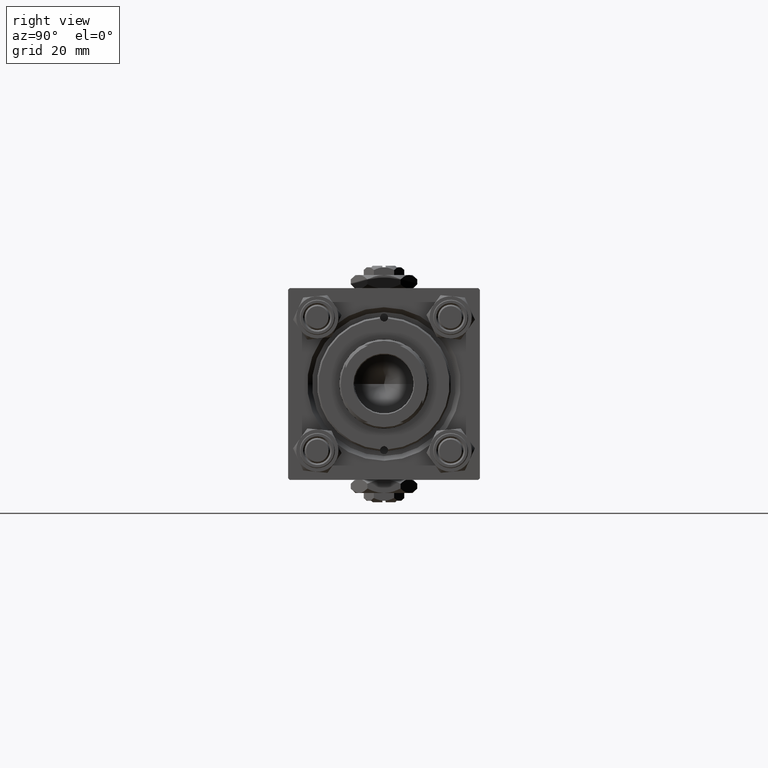
[diagram: clean part render]
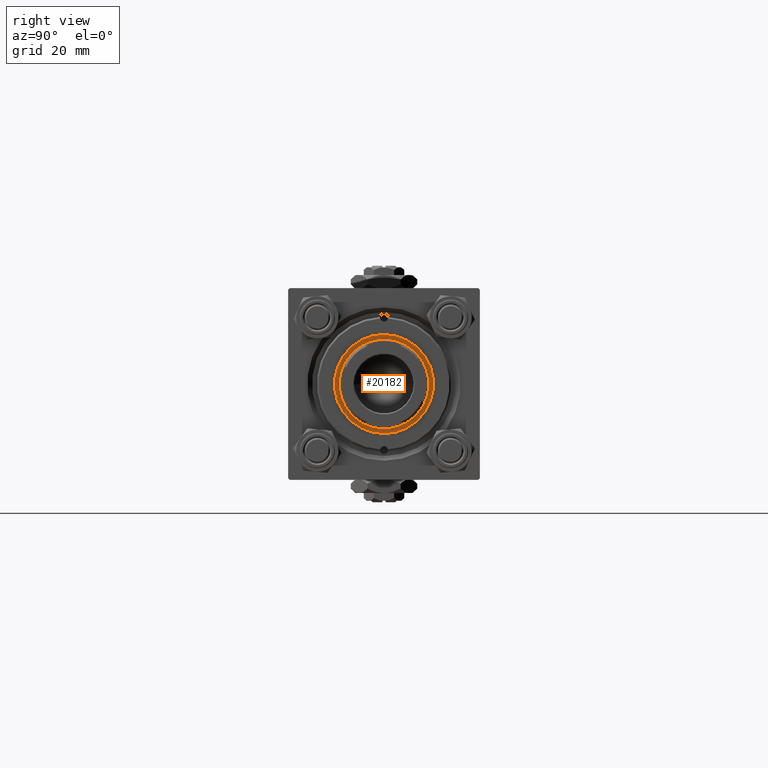
[diagram: same view with one face highlighted and labeled with its STEP entity id]
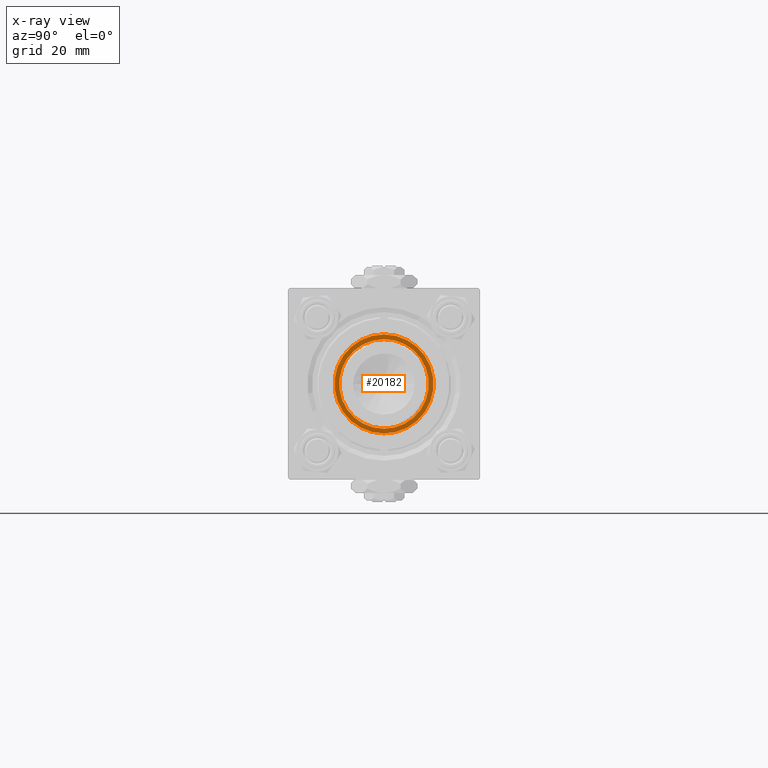
[diagram: x-ray of the same camera — body ghosted, the highlighted face saturated]
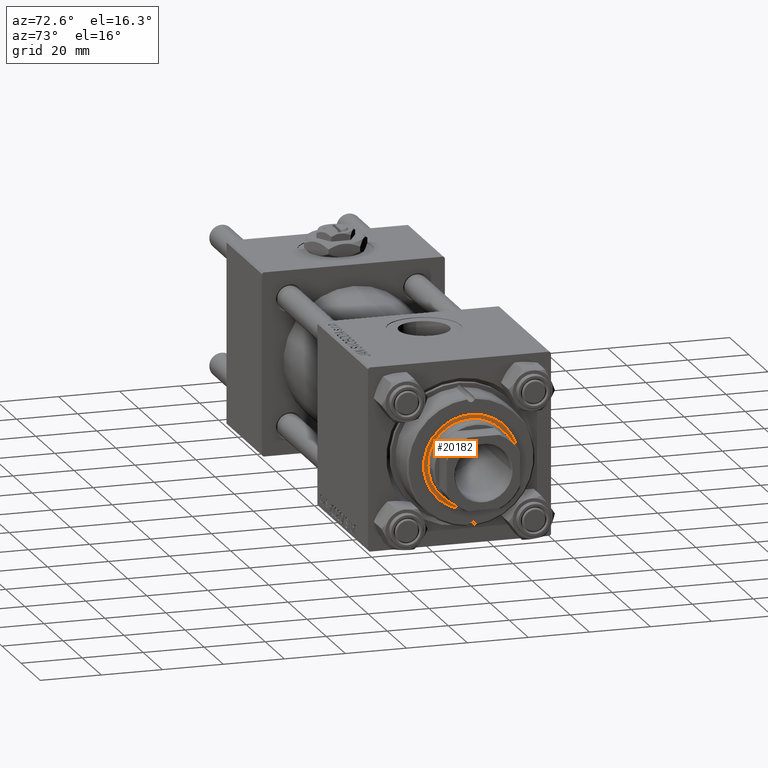
[diagram: same view with one face highlighted and labeled with its STEP entity id]
A machine part, right view. The second image highlights one B-rep face of the part: STEP entity #20182.
The next image is the same camera in x-ray: the body ghosted, the highlighted face saturated — about 0% of this face is hidden behind the body in this view.
A second angle (auxiliary view) of the same face is appended — the face is thin or edge-on in the first view.
In plain terms, the highlighted planar face has unit normal (1, 0, -0).
Its self-contained STEP definition (entity closure, byte-faithful):
#52 = CARTESIAN_POINT ( 'NONE',  ( 15.50000000000000000, 0.000000000000000000, 40.20000000000000284 ) ) ;
#591 = DIRECTION ( 'NONE',  ( -0.000000000000000000, -0.000000000000000000, -1.000000000000000000 ) ) ;
#847 = EDGE_CURVE ( 'NONE', #35475, #30435, #19662, .T. ) ;
#2757 = EDGE_LOOP ( 'NONE', ( #4251, #43251 ) ) ;
#3105 = FACE_OUTER_BOUND ( 'NONE', #2757, .T. ) ;
#4251 = ORIENTED_EDGE ( 'NONE', *, *, #9672, .T. ) ;
#5069 = CARTESIAN_POINT ( 'NONE',  ( 0.000000000000000000, 0.000000000000000000, 40.20000000000000284 ) ) ;
#7122 = CARTESIAN_POINT ( 'NONE',  ( 0.000000000000000000, 0.000000000000000000, 40.20000000000000284 ) ) ;
#8932 = CIRCLE ( 'NONE', #43461, 15.50000000000000000 ) ;
#9672 = EDGE_CURVE ( 'NONE', #18251, #32318, #43405, .T. ) ;
#10272 = DIRECTION ( 'NONE',  ( 1.000000000000000000, 0.000000000000000000, 0.000000000000000000 ) ) ;
#11235 = AXIS2_PLACEMENT_3D ( 'NONE', #7122, #23737, #11870 ) ;
#11870 = DIRECTION ( 'NONE',  ( 1.000000000000000000, 0.000000000000000000, 0.000000000000000000 ) ) ;
#13000 = DIRECTION ( 'NONE',  ( 0.000000000000000000, 0.000000000000000000, 1.000000000000000000 ) ) ;
#16345 = CIRCLE ( 'NONE', #44107, 14.00000000000000178 ) ;
#17206 = CARTESIAN_POINT ( 'NONE',  ( 0.000000000000000000, 0.000000000000000000, 40.20000000000000284 ) ) ;
#18251 = VERTEX_POINT ( 'NONE', #52 ) ;
#18420 = FACE_BOUND ( 'NONE', #25621, .T. ) ;
#19662 = CIRCLE ( 'NONE', #11235, 14.00000000000000178 ) ;
#20182 = ADVANCED_FACE ( 'NONE', ( #3105, #18420 ), #50581, .T. ) ;
#21006 = CARTESIAN_POINT ( 'NONE',  ( 0.000000000000000000, 0.000000000000000000, 40.20000000000000284 ) ) ;
#21561 = ORIENTED_EDGE ( 'NONE', *, *, #31410, .T. ) ;
#22650 = CARTESIAN_POINT ( 'NONE',  ( 0.000000000000000000, 0.000000000000000000, 40.20000000000000284 ) ) ;
#23737 = DIRECTION ( 'NONE',  ( -0.000000000000000000, -0.000000000000000000, -1.000000000000000000 ) ) ;
#25119 = DIRECTION ( 'NONE',  ( 1.000000000000000000, 0.000000000000000000, 0.000000000000000000 ) ) ;
#25621 = EDGE_LOOP ( 'NONE', ( #21561, #42838 ) ) ;
#30435 = VERTEX_POINT ( 'NONE', #47810 ) ;
#31410 = EDGE_CURVE ( 'NONE', #30435, #35475, #16345, .T. ) ;
#32029 = CARTESIAN_POINT ( 'NONE',  ( -15.50000000000000000, 1.898202538678397557E-15, 40.20000000000000284 ) ) ;
#32318 = VERTEX_POINT ( 'NONE', #32029 ) ;
#34146 = DIRECTION ( 'NONE',  ( 0.000000000000000000, 0.000000000000000000, 1.000000000000000000 ) ) ;
#35475 = VERTEX_POINT ( 'NONE', #44610 ) ;
#37043 = EDGE_CURVE ( 'NONE', #32318, #18251, #8932, .T. ) ;
#42402 = DIRECTION ( 'NONE',  ( 1.000000000000000000, 0.000000000000000000, -0.000000000000000000 ) ) ;
#42838 = ORIENTED_EDGE ( 'NONE', *, *, #847, .T. ) ;
#43251 = ORIENTED_EDGE ( 'NONE', *, *, #37043, .T. ) ;
#43405 = CIRCLE ( 'NONE', #47616, 15.50000000000000000 ) ;
#43461 = AXIS2_PLACEMENT_3D ( 'NONE', #21006, #34146, #50239 ) ;
#44107 = AXIS2_PLACEMENT_3D ( 'NONE', #5069, #591, #25119 ) ;
#44610 = CARTESIAN_POINT ( 'NONE',  ( -14.00000000000000178, 1.714505518806294835E-15, 40.20000000000000284 ) ) ;
#46378 = AXIS2_PLACEMENT_3D ( 'NONE', #22650, #46609, #42402 ) ;
#46609 = DIRECTION ( 'NONE',  ( 0.000000000000000000, 0.000000000000000000, 1.000000000000000000 ) ) ;
#47616 = AXIS2_PLACEMENT_3D ( 'NONE', #17206, #13000, #10272 ) ;
#47810 = CARTESIAN_POINT ( 'NONE',  ( 14.00000000000000178, 0.000000000000000000, 40.20000000000000284 ) ) ;
#50239 = DIRECTION ( 'NONE',  ( 1.000000000000000000, 0.000000000000000000, 0.000000000000000000 ) ) ;
#50581 = PLANE ( 'NONE',  #46378 ) ;